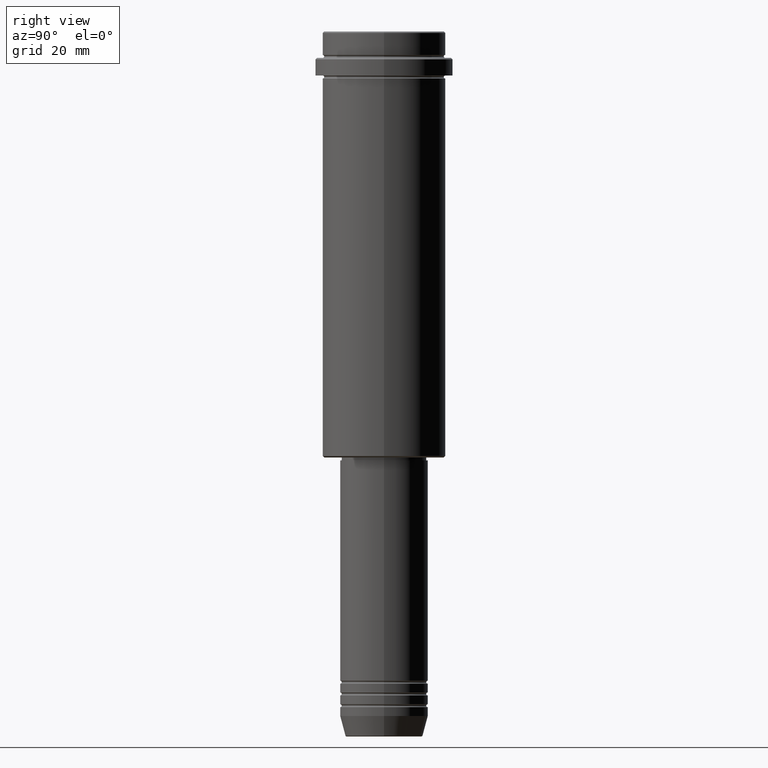
[diagram: clean part render]
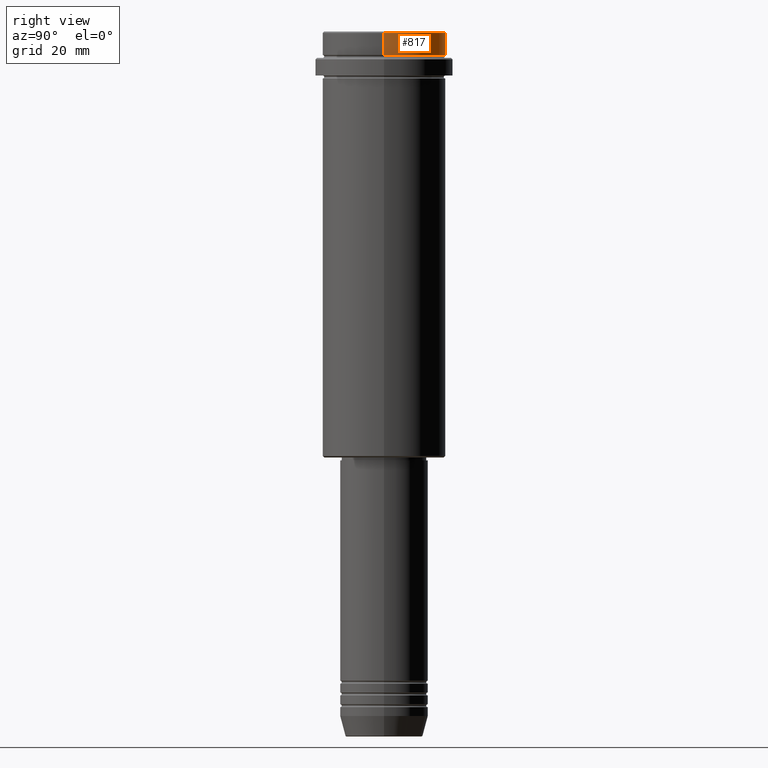
[diagram: same view with one face highlighted and labeled with its STEP entity id]
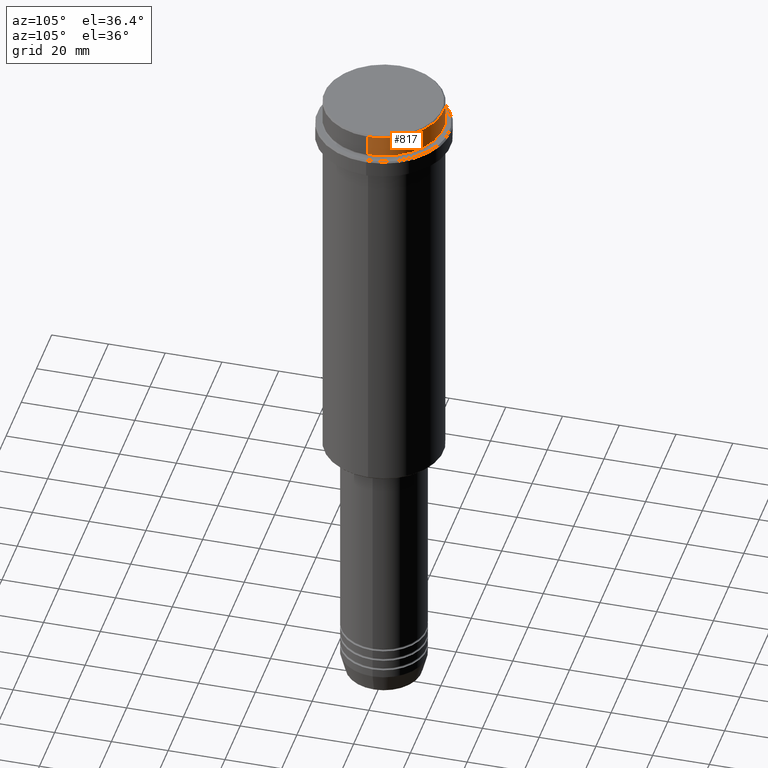
[diagram: same view with one face highlighted and labeled with its STEP entity id]
A machine part, right view. The second image highlights one B-rep face of the part: STEP entity #817.
A second angle (auxiliary view) of the same face is appended — the face is thin or edge-on in the first view.
In plain terms, the highlighted cylindrical surface (partial cylindrical patch) has radius 21 mm, axis along (-0, -0, 1).
Its self-contained STEP definition (entity closure, byte-faithful):
#37 = VERTEX_POINT ( 'NONE', #1364 ) ;
#99 = CIRCLE ( 'NONE', #712, 21.00000000000000000 ) ;
#143 = CARTESIAN_POINT ( 'NONE',  ( 21.00000000000000000, 0.000000000000000000, -0.5000000000000108802 ) ) ;
#191 = CARTESIAN_POINT ( 'NONE',  ( 0.000000000000000000, 0.000000000000000000, -0.5000000000000108802 ) ) ;
#200 = CARTESIAN_POINT ( 'NONE',  ( -21.00000000000000000, 2.571758278209441661E-15, 0.000000000000000000 ) ) ;
#265 = CARTESIAN_POINT ( 'NONE',  ( 0.000000000000000000, 0.000000000000000000, 0.000000000000000000 ) ) ;
#280 = ORIENTED_EDGE ( 'NONE', *, *, #948, .T. ) ;
#346 = DIRECTION ( 'NONE',  ( -0.000000000000000000, -0.000000000000000000, 1.000000000000000000 ) ) ;
#356 = LINE ( 'NONE', #1017, #574 ) ;
#376 = FACE_OUTER_BOUND ( 'NONE', #1059, .T. ) ;
#469 = ORIENTED_EDGE ( 'NONE', *, *, #1237, .F. ) ;
#523 = ORIENTED_EDGE ( 'NONE', *, *, #1134, .T. ) ;
#573 = VECTOR ( 'NONE', #731, 1000.000000000000000 ) ;
#574 = VECTOR ( 'NONE', #795, 1000.000000000000000 ) ;
#622 = CIRCLE ( 'NONE', #908, 21.00000000000000000 ) ;
#704 = CARTESIAN_POINT ( 'NONE',  ( -21.00000000000000000, 2.571758278209441661E-15, -0.5000000000000108802 ) ) ;
#712 = AXIS2_PLACEMENT_3D ( 'NONE', #191, #1270, #1069 ) ;
#731 = DIRECTION ( 'NONE',  ( -0.000000000000000000, -0.000000000000000000, 1.000000000000000000 ) ) ;
#780 = VERTEX_POINT ( 'NONE', #704 ) ;
#795 = DIRECTION ( 'NONE',  ( -0.000000000000000000, -0.000000000000000000, 1.000000000000000000 ) ) ;
#799 = ORIENTED_EDGE ( 'NONE', *, *, #920, .T. ) ;
#817 = ADVANCED_FACE ( 'NONE', ( #376 ), #914, .T. ) ;
#908 = AXIS2_PLACEMENT_3D ( 'NONE', #1102, #346, #1412 ) ;
#914 = CYLINDRICAL_SURFACE ( 'NONE', #1352, 21.00000000000000000 ) ;
#920 = EDGE_CURVE ( 'NONE', #1235, #780, #1276, .T. ) ;
#948 = EDGE_CURVE ( 'NONE', #780, #1232, #99, .T. ) ;
#1017 = CARTESIAN_POINT ( 'NONE',  ( 21.00000000000000000, 0.000000000000000000, 0.000000000000000000 ) ) ;
#1059 = EDGE_LOOP ( 'NONE', ( #523, #799, #280, #469 ) ) ;
#1069 = DIRECTION ( 'NONE',  ( 1.000000000000000000, 0.000000000000000000, 0.000000000000000000 ) ) ;
#1102 = CARTESIAN_POINT ( 'NONE',  ( 0.000000000000000000, 0.000000000000000000, -7.999999999999998224 ) ) ;
#1132 = DIRECTION ( 'NONE',  ( 1.000000000000000000, 0.000000000000000000, 0.000000000000000000 ) ) ;
#1134 = EDGE_CURVE ( 'NONE', #37, #1235, #622, .T. ) ;
#1224 = CARTESIAN_POINT ( 'NONE',  ( -21.00000000000000000, 2.571758278209441661E-15, -7.999999999999998224 ) ) ;
#1232 = VERTEX_POINT ( 'NONE', #143 ) ;
#1235 = VERTEX_POINT ( 'NONE', #1224 ) ;
#1237 = EDGE_CURVE ( 'NONE', #37, #1232, #356, .T. ) ;
#1270 = DIRECTION ( 'NONE',  ( 0.000000000000000000, 0.000000000000000000, -1.000000000000000000 ) ) ;
#1276 = LINE ( 'NONE', #200, #573 ) ;
#1338 = DIRECTION ( 'NONE',  ( -0.000000000000000000, -0.000000000000000000, 1.000000000000000000 ) ) ;
#1352 = AXIS2_PLACEMENT_3D ( 'NONE', #265, #1338, #1132 ) ;
#1364 = CARTESIAN_POINT ( 'NONE',  ( 21.00000000000000000, 0.000000000000000000, -7.999999999999998224 ) ) ;
#1412 = DIRECTION ( 'NONE',  ( 1.000000000000000000, 0.000000000000000000, 0.000000000000000000 ) ) ;